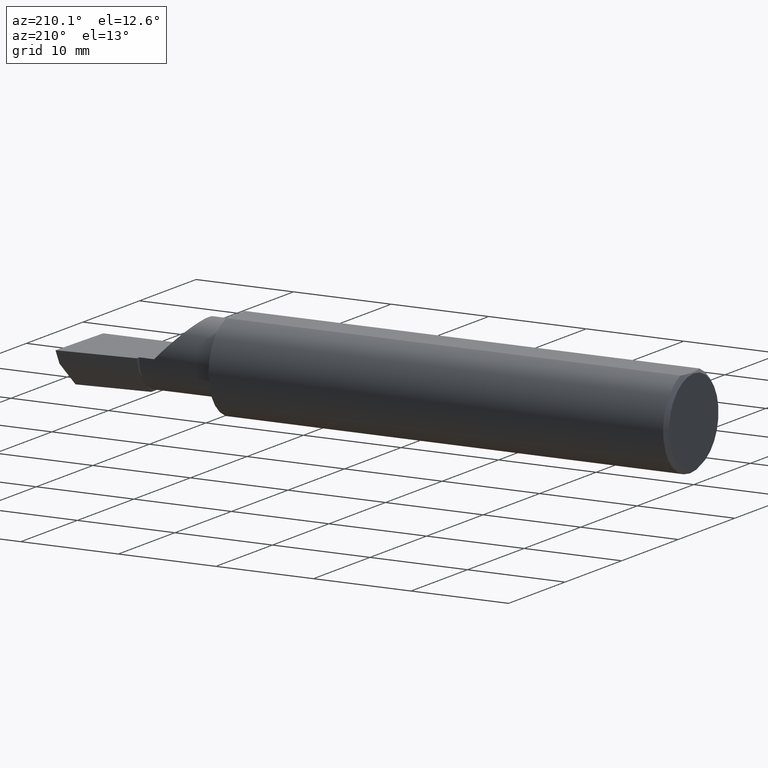
[diagram: clean part render]
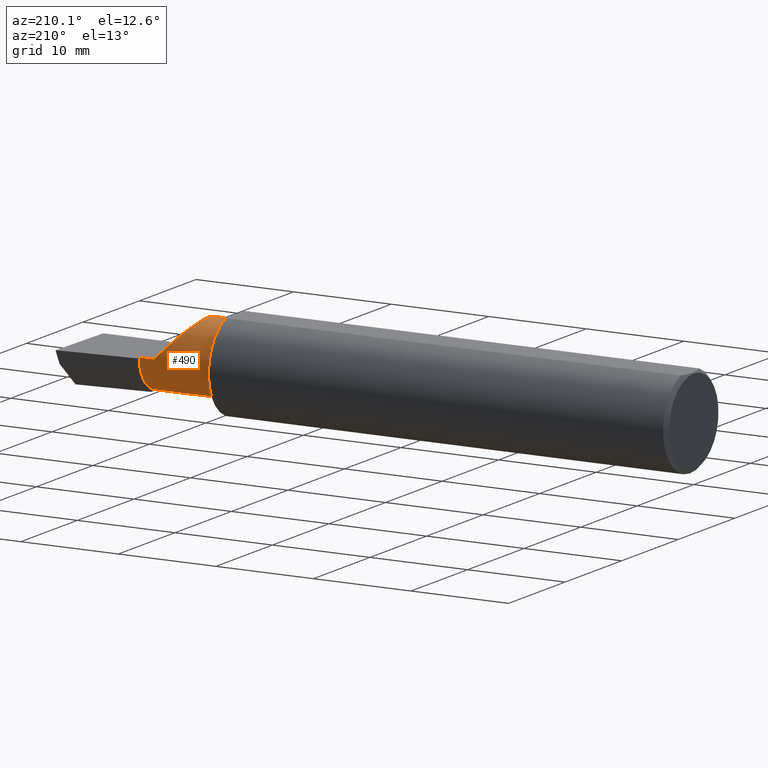
[diagram: same view with one face highlighted and labeled with its STEP entity id]
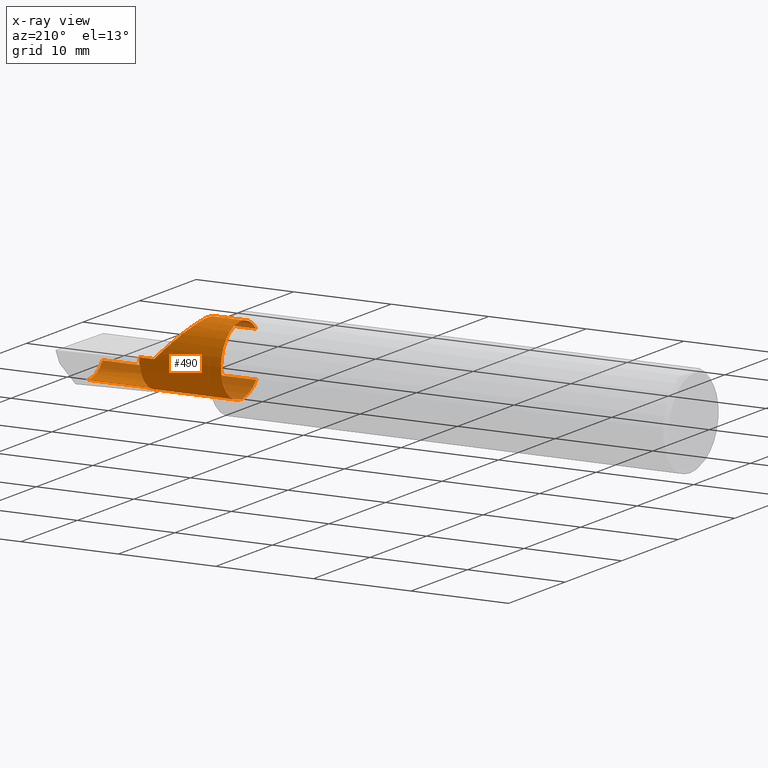
[diagram: x-ray of the same camera — body ghosted, the highlighted face saturated]
A machine part, auxiliary view. The second image highlights one B-rep face of the part: STEP entity #490.
The next image is the same camera in x-ray: the body ghosted, the highlighted face saturated — about 16% of this face is hidden behind the body in this view.
In plain terms, the highlighted cylindrical surface (partial cylindrical patch) has radius 3.5573 mm, axis along (-1, -0, -0).
Its self-contained STEP definition (entity closure, byte-faithful):
#1 = CARTESIAN_POINT ( 'NONE',  ( 2.189999999999999947, -0.05739999999999999963, 0.000000000000000000 ) ) ;
#9 = CARTESIAN_POINT ( 'NONE',  ( 2.481080296960508580, -0.1635956445993030084, -0.09130436773856176469 ) ) ;
#15 = DIRECTION ( 'NONE',  ( 1.000000000000000000, 6.829619984160658046E-18, 0.000000000000000000 ) ) ;
#17 = CARTESIAN_POINT ( 'NONE',  ( -9.564882787816664242E-19, 0.08264999999999998737, 3.267291166268304703E-16 ) ) ;
#20 = CARTESIAN_POINT ( 'NONE',  ( 2.189999999999999947, -0.05739999999999999963, -0.1400500000000000633 ) ) ;
#52 = VERTEX_POINT ( 'NONE', #54 ) ;
#54 = CARTESIAN_POINT ( 'NONE',  ( 2.189999999999999947, 0.08265000000000004288, 3.267291166268305196E-16 ) ) ;
#58 = EDGE_CURVE ( 'NONE', #52, #557, #383, .T. ) ;
#61 = DIRECTION ( 'NONE',  ( -1.000000000000000000, -6.829619984160658046E-18, -0.000000000000000000 ) ) ;
#63 = VERTEX_POINT ( 'NONE', #578 ) ;
#64 = CARTESIAN_POINT ( 'NONE',  ( 1.860000000000000098, -0.05740000000000000657, 0.000000000000000000 ) ) ;
#66 = EDGE_CURVE ( 'NONE', #476, #63, #503, .T. ) ;
#67 = DIRECTION ( 'NONE',  ( 6.829619984160658816E-18, -1.000000000000000000, 0.000000000000000000 ) ) ;
#76 = ORIENTED_EDGE ( 'NONE', *, *, #150, .T. ) ;
#77 = DIRECTION ( 'NONE',  ( 1.000000000000000000, 6.829619984160658046E-18, 0.000000000000000000 ) ) ;
#78 = CARTESIAN_POINT ( 'NONE',  ( 1.975085956200449022, 0.08265000000000000124, 0.1549140437995494002 ) ) ;
#104 = CYLINDRICAL_SURFACE ( 'NONE', #606, 0.1400500000000000078 ) ;
#107 = ORIENTED_EDGE ( 'NONE', *, *, #532, .T. ) ;
#113 = CARTESIAN_POINT ( 'NONE',  ( 1.860000000000000098, -0.1635956445993029251, -0.09130436773856194510 ) ) ;
#119 = AXIS2_PLACEMENT_3D ( 'NONE', #1, #443, #195 ) ;
#122 = ORIENTED_EDGE ( 'NONE', *, *, #573, .T. ) ;
#125 = LINE ( 'NONE', #162, #288 ) ;
#130 = EDGE_CURVE ( 'NONE', #239, #599, #304, .T. ) ;
#135 = VERTEX_POINT ( 'NONE', #113 ) ;
#148 = DIRECTION ( 'NONE',  ( 0.000000000000000000, -1.000000000000000000, 0.000000000000000000 ) ) ;
#150 = EDGE_CURVE ( 'NONE', #512, #599, #187, .T. ) ;
#155 = EDGE_CURVE ( 'NONE', #512, #557, #583, .T. ) ;
#160 = DIRECTION ( 'NONE',  ( -1.000000000000000000, -6.829619984160658046E-18, -0.000000000000000000 ) ) ;
#161 =( BOUNDED_CURVE ( )  B_SPLINE_CURVE ( 3, ( #345, #595, #542, #264 ),
 .UNSPECIFIED., .F., .F. ) 
 B_SPLINE_CURVE_WITH_KNOTS ( ( 4, 4 ),
 ( 5.632580117768155148, 6.493234751459282528 ),
 .UNSPECIFIED. ) 
 CURVE ( )  GEOMETRIC_REPRESENTATION_ITEM ( )  RATIONAL_B_SPLINE_CURVE ( ( 1.000000000000000000, 0.9392195014330944058, 0.9392195014330944058, 1.000000000000000000 ) ) 
 REPRESENTATION_ITEM ( '' )  );
#162 = CARTESIAN_POINT ( 'NONE',  ( 2.024999999999999911, -0.1635956445993030084, -0.09130436773856176469 ) ) ;
#163 = CARTESIAN_POINT ( 'NONE',  ( 2.500000000000000000, -0.05739999999999999963, -0.1400500000000000633 ) ) ;
#169 = ORIENTED_EDGE ( 'NONE', *, *, #344, .F. ) ;
#187 = CIRCLE ( 'NONE', #577, 0.1400500000000000356 ) ;
#195 = DIRECTION ( 'NONE',  ( 0.000000000000000000, -1.000000000000000000, 0.000000000000000000 ) ) ;
#208 = DIRECTION ( 'NONE',  ( -1.000000000000000000, 5.691349986800549142E-18, -0.000000000000000000 ) ) ;
#228 = CARTESIAN_POINT ( 'NONE',  ( 2.477873865042410806, -0.05739999999999999963, -0.1400500000000000633 ) ) ;
#239 = VERTEX_POINT ( 'NONE', #228 ) ;
#252 = LINE ( 'NONE', #256, #456 ) ;
#253 = CARTESIAN_POINT ( 'NONE',  ( 2.129999999999999893, 0.08264999999999990410, 1.065442715258197396E-16 ) ) ;
#256 = CARTESIAN_POINT ( 'NONE',  ( 2.024999999999999911, -0.1635956445993030084, 0.09130436773856176469 ) ) ;
#259 = CARTESIAN_POINT ( 'NONE',  ( 2.189999999999999947, 0.06026672169836850418, -0.07595093880103591377 ) ) ;
#264 = CARTESIAN_POINT ( 'NONE',  ( 2.477873865042410806, -0.05739999999999999963, -0.1400500000000000633 ) ) ;
#277 = VECTOR ( 'NONE', #208, 39.37007874015748143 ) ;
#285 = ORIENTED_EDGE ( 'NONE', *, *, #596, .F. ) ;
#288 = VECTOR ( 'NONE', #342, 39.37007874015748143 ) ;
#304 = LINE ( 'NONE', #163, #277 ) ;
#313 = ORIENTED_EDGE ( 'NONE', *, *, #58, .T. ) ;
#335 = VECTOR ( 'NONE', #77, 39.37007874015748143 ) ;
#337 = FACE_OUTER_BOUND ( 'NONE', #455, .T. ) ;
#342 = DIRECTION ( 'NONE',  ( -1.000000000000000000, -6.829619984160658046E-18, -0.000000000000000000 ) ) ;
#344 = EDGE_CURVE ( 'NONE', #420, #135, #426, .T. ) ;
#345 = CARTESIAN_POINT ( 'NONE',  ( 2.481080296960508580, -0.1635956445993030084, -0.09130436773856176469 ) ) ;
#364 = ORIENTED_EDGE ( 'NONE', *, *, #155, .F. ) ;
#383 = CIRCLE ( 'NONE', #119, 0.1400500000000000356 ) ;
#384 = AXIS2_PLACEMENT_3D ( 'NONE', #64, #61, #148 ) ;
#393 = CARTESIAN_POINT ( 'NONE',  ( 2.038695632261437130, -0.1635956445993029529, 0.09130436773856191734 ) ) ;
#398 = CARTESIAN_POINT ( 'NONE',  ( 2.189999999999999947, -0.05739999999999999963, 0.000000000000000000 ) ) ;
#400 = CARTESIAN_POINT ( 'NONE',  ( 0.000000000000000000, -0.05740000000000001351, 0.000000000000000000 ) ) ;
#420 = VERTEX_POINT ( 'NONE', #624 ) ;
#426 = CIRCLE ( 'NONE', #384, 0.1400499999999999801 ) ;
#443 = DIRECTION ( 'NONE',  ( -1.000000000000000000, -6.829619984160658046E-18, -0.000000000000000000 ) ) ;
#444 = LINE ( 'NONE', #17, #335 ) ;
#445 = CARTESIAN_POINT ( 'NONE',  ( 2.189999999999999947, -0.05739999999999999963, 0.000000000000000000 ) ) ;
#455 = EDGE_LOOP ( 'NONE', ( #285, #122, #169, #502, #566, #107, #313, #364, #76, #564 ) ) ;
#456 = VECTOR ( 'NONE', #589, 39.37007874015748143 ) ;
#476 = VERTEX_POINT ( 'NONE', #526 ) ;
#490 = ADVANCED_FACE ( 'NONE', ( #337 ), #104, .T. ) ;
#499 = DIRECTION ( 'NONE',  ( -1.000000000000000000, -6.829619984160658046E-18, -0.000000000000000000 ) ) ;
#501 = EDGE_CURVE ( 'NONE', #420, #476, #252, .T. ) ;
#502 = ORIENTED_EDGE ( 'NONE', *, *, #501, .T. ) ;
#503 =( BOUNDED_CURVE ( )  B_SPLINE_CURVE ( 3, ( #393, #585, #78, #253 ),
 .UNSPECIFIED., .F., .T. ) 
 B_SPLINE_CURVE_WITH_KNOTS ( ( 4, 4 ),
 ( 5.422530673488458852, 7.853981633974482790 ),
 .UNSPECIFIED. ) 
 CURVE ( )  GEOMETRIC_REPRESENTATION_ITEM ( )  RATIONAL_B_SPLINE_CURVE ( ( 1.000000000000000000, 0.5651045289226863666, 0.5651045289226863666, 1.000000000000000000 ) ) 
 REPRESENTATION_ITEM ( '' )  );
#512 = VERTEX_POINT ( 'NONE', #549 ) ;
#526 = CARTESIAN_POINT ( 'NONE',  ( 2.038695632261437130, -0.1635956445993029529, 0.09130436773856191734 ) ) ;
#532 = EDGE_CURVE ( 'NONE', #63, #52, #444, .T. ) ;
#540 = DIRECTION ( 'NONE',  ( 0.000000000000000000, -1.000000000000000000, 0.000000000000000000 ) ) ;
#542 = CARTESIAN_POINT ( 'NONE',  ( 2.476787929832031221, -0.09887019258091186980, -0.1400500000000000356 ) ) ;
#549 = CARTESIAN_POINT ( 'NONE',  ( 2.189999999999999947, 0.02208021110064902273, -0.1153121786430049006 ) ) ;
#557 = VERTEX_POINT ( 'NONE', #259 ) ;
#564 = ORIENTED_EDGE ( 'NONE', *, *, #130, .F. ) ;
#566 = ORIENTED_EDGE ( 'NONE', *, *, #66, .T. ) ;
#573 = EDGE_CURVE ( 'NONE', #602, #135, #125, .T. ) ;
#577 = AXIS2_PLACEMENT_3D ( 'NONE', #445, #160, #540 ) ;
#578 = CARTESIAN_POINT ( 'NONE',  ( 2.129999999999999893, 0.08264999999999990410, 1.065442715258197396E-16 ) ) ;
#583 = CIRCLE ( 'NONE', #593, 0.1400500000000000356 ) ;
#585 = CARTESIAN_POINT ( 'NONE',  ( 1.921229036482944075, -0.06260079402492431389, 0.2087709635170538203 ) ) ;
#589 = DIRECTION ( 'NONE',  ( 1.000000000000000000, 6.829619984160658046E-18, 0.000000000000000000 ) ) ;
#590 = DIRECTION ( 'NONE',  ( 0.000000000000000000, -1.000000000000000000, 0.000000000000000000 ) ) ;
#593 = AXIS2_PLACEMENT_3D ( 'NONE', #398, #15, #590 ) ;
#595 = CARTESIAN_POINT ( 'NONE',  ( 2.477925907309857401, -0.1365595166907235813, -0.1227499502647108609 ) ) ;
#596 = EDGE_CURVE ( 'NONE', #602, #239, #161, .T. ) ;
#599 = VERTEX_POINT ( 'NONE', #20 ) ;
#602 = VERTEX_POINT ( 'NONE', #9 ) ;
#606 = AXIS2_PLACEMENT_3D ( 'NONE', #400, #499, #67 ) ;
#624 = CARTESIAN_POINT ( 'NONE',  ( 1.860000000000000098, -0.1635956445993029529, 0.09130436773856188959 ) ) ;